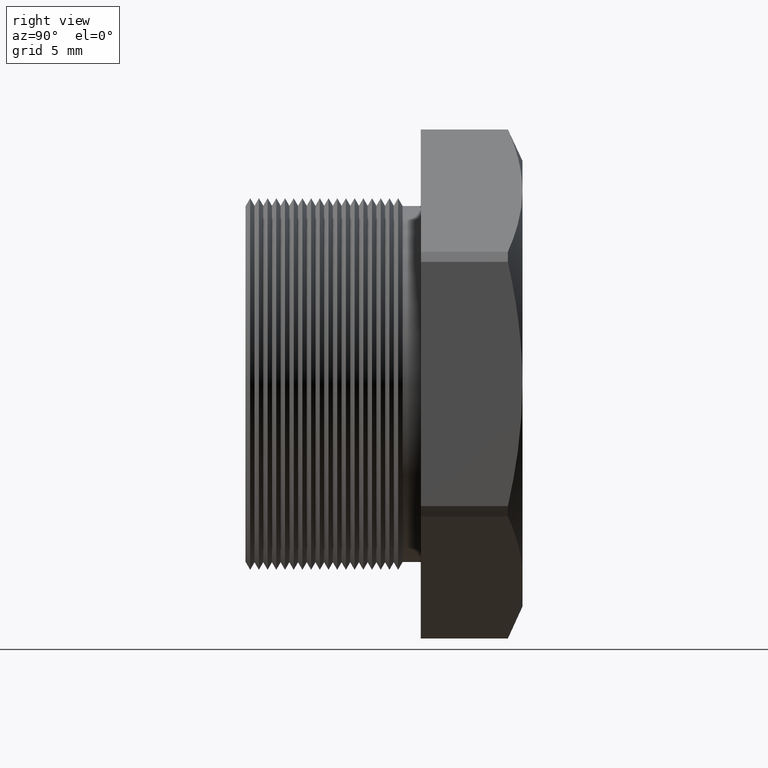
[diagram: clean part render]
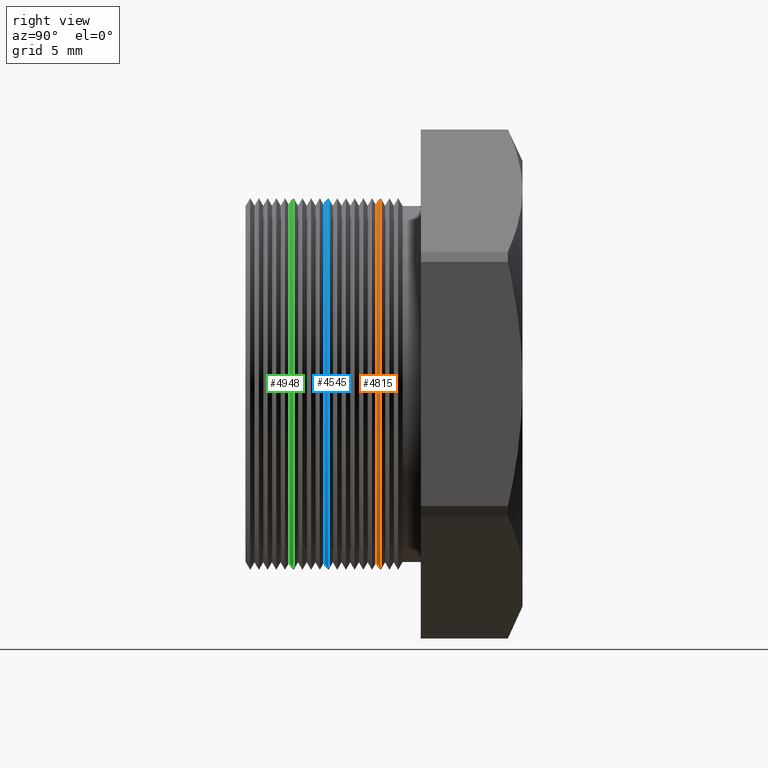
[diagram: same view with three faces highlighted in distinct colors, each labeled with its STEP entity id]
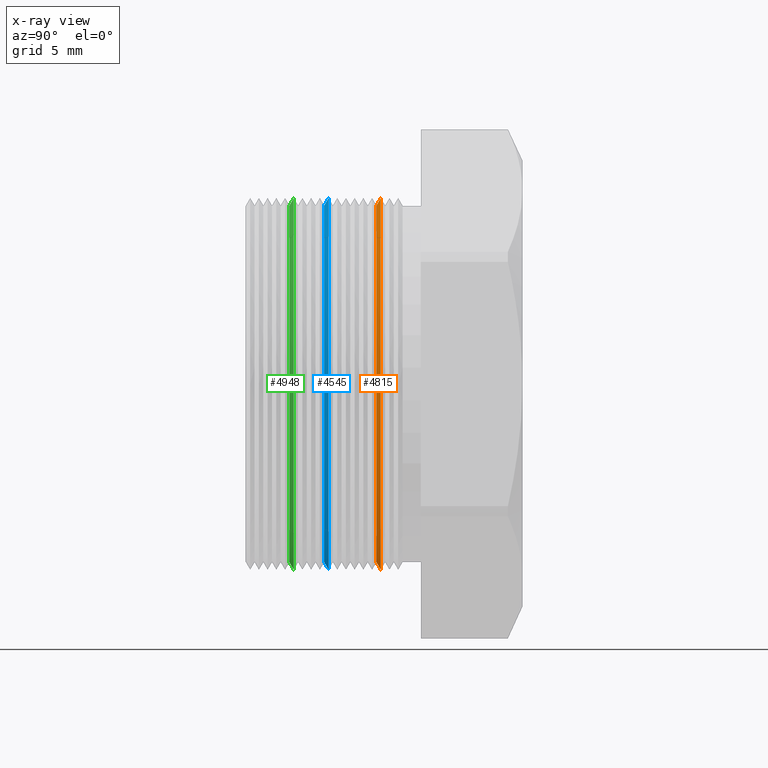
[diagram: x-ray of the same camera — body ghosted, the three highlighted faces saturated]
A machine part, right view with three faces highlighted in distinct colors.
The next image is the same camera in x-ray (body ghosted, the three faces saturated) — at least one of them is partly hidden behind the body in this view.
Their STEP definitions:

[orange] entity #4815 — the highlighted conical surface has half-angle 60 deg.
#1089 = DIRECTION ( 'NONE',  ( 0.0000000000000000000, 0.0000000000000000000, -1.000000000000000000 ) ) ;
#1091 = DIRECTION ( 'NONE',  ( 0.0000000000000000000, -1.000000000000000000, 0.0000000000000000000 ) ) ;
#1092 = CARTESIAN_POINT ( 'NONE',  ( 0.0000000000000000000, 0.1490548905829479900, 0.0000000000000000000 ) ) ;
#1093 = AXIS2_PLACEMENT_3D ( 'NONE', #1092, #1091, #1089 ) ;
#1094 = CIRCLE ( 'NONE', #1093, 0.3154370903427743400 ) ;
#1095 = CARTESIAN_POINT ( 'NONE',  ( 0.0000000000000000000, 0.1490548905829479900, 0.3154370903427743400 ) ) ;
#1101 = CARTESIAN_POINT ( 'NONE',  ( 3.944654523588147600E-017, 0.1490548905829479900, -0.3154370903427743400 ) ) ;
#1173 = LINE ( 'NONE', #1239, #1238 ) ;
#1174 = CARTESIAN_POINT ( 'NONE',  ( 0.0000000000000000000, 0.1567548905829480300, -0.3287738815610546400 ) ) ;
#1175 = CARTESIAN_POINT ( 'NONE',  ( 4.026318816969966200E-017, 0.1567548905829480300, 0.3287738815610546400 ) ) ;
#1176 = DIRECTION ( 'NONE',  ( 0.0000000000000000000, 0.0000000000000000000, 1.000000000000000000 ) ) ;
#1177 = DIRECTION ( 'NONE',  ( -0.0000000000000000000, 1.000000000000000000, -0.0000000000000000000 ) ) ;
#1178 = CARTESIAN_POINT ( 'NONE',  ( 0.0000000000000000000, 0.1567548905829480300, 0.0000000000000000000 ) ) ;
#1179 = AXIS2_PLACEMENT_3D ( 'NONE', #1178, #1177, #1176 ) ;
#1180 = CIRCLE ( 'NONE', #1179, 0.3287738815610546400 ) ;
#1181 = DIRECTION ( 'NONE',  ( 0.0000000000000000000, 0.5000000000000008900, 0.8660254037844380400 ) ) ;
#1182 = VECTOR ( 'NONE', #1181, 39.37007874015748100 ) ;
#1183 = CARTESIAN_POINT ( 'NONE',  ( 0.0000000000000000000, 0.1567548905829480300, 0.3287738815610546400 ) ) ;
#1184 = LINE ( 'NONE', #1183, #1182 ) ;
#1237 = DIRECTION ( 'NONE',  ( 1.060575238724906300E-016, 0.5000000000000008900, -0.8660254037844380400 ) ) ;
#1238 = VECTOR ( 'NONE', #1237, 39.37007874015748100 ) ;
#1239 = CARTESIAN_POINT ( 'NONE',  ( 4.026318816969965600E-017, 0.1567548905829480300, -0.3287738815610546400 ) ) ;
#1255 = DIRECTION ( 'NONE',  ( 0.0000000000000000000, 0.0000000000000000000, 1.000000000000000000 ) ) ;
#1256 = DIRECTION ( 'NONE',  ( -0.0000000000000000000, 1.000000000000000000, -0.0000000000000000000 ) ) ;
#1257 = CARTESIAN_POINT ( 'NONE',  ( 0.0000000000000000000, 0.1567548905829480300, 0.0000000000000000000 ) ) ;
#1258 = AXIS2_PLACEMENT_3D ( 'NONE', #1257, #1256, #1255 ) ;
#1260 = CONICAL_SURFACE ( 'NONE', #1258, 0.3287738815610546400, 1.047197551196596700 ) ;
#1261 = FACE_OUTER_BOUND ( 'NONE', #4807, .T. ) ;
#4728 = VERTEX_POINT ( 'NONE', #1101 ) ;
#4731 = VERTEX_POINT ( 'NONE', #1095 ) ;
#4738 = EDGE_CURVE ( 'NONE', #4728, #4731, #1094, .T. ) ;
#4780 = ORIENTED_EDGE ( 'NONE', *, *, #4783, .F. ) ;
#4783 = EDGE_CURVE ( 'NONE', #4731, #4790, #1184, .T. ) ;
#4786 = ORIENTED_EDGE ( 'NONE', *, *, #4788, .F. ) ;
#4788 = EDGE_CURVE ( 'NONE', #4790, #4791, #1180, .T. ) ;
#4790 = VERTEX_POINT ( 'NONE', #1175 ) ;
#4791 = VERTEX_POINT ( 'NONE', #1174 ) ;
#4792 = EDGE_CURVE ( 'NONE', #4728, #4791, #1173, .T. ) ;
#4795 = ORIENTED_EDGE ( 'NONE', *, *, #4792, .T. ) ;
#4799 = ORIENTED_EDGE ( 'NONE', *, *, #4738, .F. ) ;
#4807 = EDGE_LOOP ( 'NONE', ( #4799, #4795, #4786, #4780 ) ) ;
#4815 = ADVANCED_FACE ( 'NONE', ( #1261 ), #1260, .T. ) ;

[blue] entity #4545 — the highlighted conical surface has half-angle 60 deg.
#654 = CARTESIAN_POINT ( 'NONE',  ( 0.0000000000000000000, 0.05665489058294797400, 0.3154370903427743400 ) ) ;
#660 = DIRECTION ( 'NONE',  ( 0.0000000000000000000, 0.0000000000000000000, 1.000000000000000000 ) ) ;
#661 = DIRECTION ( 'NONE',  ( -0.0000000000000000000, 1.000000000000000000, -0.0000000000000000000 ) ) ;
#662 = AXIS2_PLACEMENT_3D ( 'NONE', #664, #661, #660 ) ;
#663 = CONICAL_SURFACE ( 'NONE', #662, 0.3287738815610546400, 1.047197551196596700 ) ;
#664 = CARTESIAN_POINT ( 'NONE',  ( 0.0000000000000000000, 0.06435489058294800700, 0.0000000000000000000 ) ) ;
#665 = FACE_OUTER_BOUND ( 'NONE', #4542, .T. ) ;
#666 = CARTESIAN_POINT ( 'NONE',  ( 3.944654523588147600E-017, 0.05665489058294797400, -0.3154370903427743400 ) ) ;
#688 = LINE ( 'NONE', #756, #755 ) ;
#697 = CARTESIAN_POINT ( 'NONE',  ( 0.0000000000000000000, 0.06435489058294800700, -0.3287738815610546400 ) ) ;
#715 = DIRECTION ( 'NONE',  ( 0.0000000000000000000, 0.0000000000000000000, -1.000000000000000000 ) ) ;
#716 = DIRECTION ( 'NONE',  ( 0.0000000000000000000, -1.000000000000000000, 0.0000000000000000000 ) ) ;
#717 = CARTESIAN_POINT ( 'NONE',  ( 0.0000000000000000000, 0.05665489058294797400, 0.0000000000000000000 ) ) ;
#718 = AXIS2_PLACEMENT_3D ( 'NONE', #717, #716, #715 ) ;
#719 = CIRCLE ( 'NONE', #718, 0.3154370903427743400 ) ;
#744 = CARTESIAN_POINT ( 'NONE',  ( 4.026318816969966200E-017, 0.06435489058294800700, 0.3287738815610546400 ) ) ;
#745 = DIRECTION ( 'NONE',  ( 0.0000000000000000000, 0.0000000000000000000, 1.000000000000000000 ) ) ;
#746 = DIRECTION ( 'NONE',  ( -0.0000000000000000000, 1.000000000000000000, -0.0000000000000000000 ) ) ;
#747 = CARTESIAN_POINT ( 'NONE',  ( 0.0000000000000000000, 0.06435489058294800700, 0.0000000000000000000 ) ) ;
#748 = AXIS2_PLACEMENT_3D ( 'NONE', #747, #746, #745 ) ;
#749 = CIRCLE ( 'NONE', #748, 0.3287738815610546400 ) ;
#750 = DIRECTION ( 'NONE',  ( 1.060575238724906300E-016, 0.5000000000000008900, -0.8660254037844380400 ) ) ;
#751 = VECTOR ( 'NONE', #750, 39.37007874015748100 ) ;
#752 = CARTESIAN_POINT ( 'NONE',  ( 4.026318816969965600E-017, 0.06435489058294800700, -0.3287738815610546400 ) ) ;
#753 = LINE ( 'NONE', #752, #751 ) ;
#754 = DIRECTION ( 'NONE',  ( 0.0000000000000000000, 0.5000000000000008900, 0.8660254037844380400 ) ) ;
#755 = VECTOR ( 'NONE', #754, 39.37007874015748100 ) ;
#756 = CARTESIAN_POINT ( 'NONE',  ( 0.0000000000000000000, 0.06435489058294800700, 0.3287738815610546400 ) ) ;
#4541 = ORIENTED_EDGE ( 'NONE', *, *, #4553, .F. ) ;
#4542 = EDGE_LOOP ( 'NONE', ( #4541, #4565, #4569, #4566 ) ) ;
#4543 = VERTEX_POINT ( 'NONE', #666 ) ;
#4545 = ADVANCED_FACE ( 'NONE', ( #665 ), #663, .T. ) ;
#4550 = VERTEX_POINT ( 'NONE', #654 ) ;
#4553 = EDGE_CURVE ( 'NONE', #4543, #4550, #719, .T. ) ;
#4563 = VERTEX_POINT ( 'NONE', #697 ) ;
#4564 = EDGE_CURVE ( 'NONE', #4550, #4570, #688, .T. ) ;
#4565 = ORIENTED_EDGE ( 'NONE', *, *, #4567, .T. ) ;
#4566 = ORIENTED_EDGE ( 'NONE', *, *, #4564, .F. ) ;
#4567 = EDGE_CURVE ( 'NONE', #4543, #4563, #753, .T. ) ;
#4568 = EDGE_CURVE ( 'NONE', #4570, #4563, #749, .T. ) ;
#4569 = ORIENTED_EDGE ( 'NONE', *, *, #4568, .F. ) ;
#4570 = VERTEX_POINT ( 'NONE', #744 ) ;

[green] entity #4948 — the highlighted conical surface has half-angle 60 deg.
#973 = DIRECTION ( 'NONE',  ( -0.0000000000000000000, 1.000000000000000000, -0.0000000000000000000 ) ) ;
#974 = CARTESIAN_POINT ( 'NONE',  ( 0.0000000000000000000, 0.002754890582948003500, 0.0000000000000000000 ) ) ;
#975 = AXIS2_PLACEMENT_3D ( 'NONE', #974, #973, #1039 ) ;
#977 = CIRCLE ( 'NONE', #975, 0.3287738815610546400 ) ;
#978 = DIRECTION ( 'NONE',  ( 0.0000000000000000000, 0.5000000000000008900, 0.8660254037844380400 ) ) ;
#979 = VECTOR ( 'NONE', #978, 39.37007874015748100 ) ;
#980 = CARTESIAN_POINT ( 'NONE',  ( 0.0000000000000000000, 0.002754890582948003500, 0.3287738815610546400 ) ) ;
#981 = LINE ( 'NONE', #980, #979 ) ;
#982 = CARTESIAN_POINT ( 'NONE',  ( 4.026318816969966200E-017, 0.002754890582948003500, 0.3287738815610546400 ) ) ;
#1039 = DIRECTION ( 'NONE',  ( 0.0000000000000000000, 0.0000000000000000000, 1.000000000000000000 ) ) ;
#1385 = CARTESIAN_POINT ( 'NONE',  ( 3.944654523588147600E-017, -0.004945109417052026200, -0.3154370903427743400 ) ) ;
#1485 = DIRECTION ( 'NONE',  ( 1.060575238724906300E-016, 0.5000000000000008900, -0.8660254037844380400 ) ) ;
#1486 = VECTOR ( 'NONE', #1485, 39.37007874015748100 ) ;
#1487 = CARTESIAN_POINT ( 'NONE',  ( 4.026318816969965600E-017, 0.002754890582948003500, -0.3287738815610546400 ) ) ;
#1488 = LINE ( 'NONE', #1487, #1486 ) ;
#1489 = CARTESIAN_POINT ( 'NONE',  ( 0.0000000000000000000, 0.002754890582948003500, -0.3287738815610546400 ) ) ;
#1503 = DIRECTION ( 'NONE',  ( 0.0000000000000000000, 0.0000000000000000000, 1.000000000000000000 ) ) ;
#1504 = DIRECTION ( 'NONE',  ( -0.0000000000000000000, 1.000000000000000000, -0.0000000000000000000 ) ) ;
#1505 = CARTESIAN_POINT ( 'NONE',  ( 0.0000000000000000000, 0.002754890582948003500, 0.0000000000000000000 ) ) ;
#1506 = AXIS2_PLACEMENT_3D ( 'NONE', #1505, #1504, #1503 ) ;
#1508 = CONICAL_SURFACE ( 'NONE', #1506, 0.3287738815610546400, 1.047197551196596700 ) ;
#1509 = FACE_OUTER_BOUND ( 'NONE', #4925, .T. ) ;
#1535 = CARTESIAN_POINT ( 'NONE',  ( 0.0000000000000000000, -0.004945109417052026200, 0.3154370903427743400 ) ) ;
#1541 = DIRECTION ( 'NONE',  ( 0.0000000000000000000, 0.0000000000000000000, -1.000000000000000000 ) ) ;
#1542 = DIRECTION ( 'NONE',  ( 0.0000000000000000000, -1.000000000000000000, 0.0000000000000000000 ) ) ;
#1543 = CARTESIAN_POINT ( 'NONE',  ( 0.0000000000000000000, -0.004945109417052026200, 0.0000000000000000000 ) ) ;
#1544 = AXIS2_PLACEMENT_3D ( 'NONE', #1543, #1542, #1541 ) ;
#1550 = CIRCLE ( 'NONE', #1544, 0.3154370903427743400 ) ;
#4698 = VERTEX_POINT ( 'NONE', #982 ) ;
#4699 = EDGE_CURVE ( 'NONE', #4963, #4698, #981, .T. ) ;
#4700 = ORIENTED_EDGE ( 'NONE', *, *, #4699, .F. ) ;
#4702 = EDGE_CURVE ( 'NONE', #4698, #4930, #977, .T. ) ;
#4704 = ORIENTED_EDGE ( 'NONE', *, *, #4702, .F. ) ;
#4889 = VERTEX_POINT ( 'NONE', #1385 ) ;
#4909 = ORIENTED_EDGE ( 'NONE', *, *, #4931, .T. ) ;
#4925 = EDGE_LOOP ( 'NONE', ( #4926, #4909, #4704, #4700 ) ) ;
#4926 = ORIENTED_EDGE ( 'NONE', *, *, #4959, .F. ) ;
#4930 = VERTEX_POINT ( 'NONE', #1489 ) ;
#4931 = EDGE_CURVE ( 'NONE', #4889, #4930, #1488, .T. ) ;
#4948 = ADVANCED_FACE ( 'NONE', ( #1509 ), #1508, .T. ) ;
#4959 = EDGE_CURVE ( 'NONE', #4889, #4963, #1550, .T. ) ;
#4963 = VERTEX_POINT ( 'NONE', #1535 ) ;